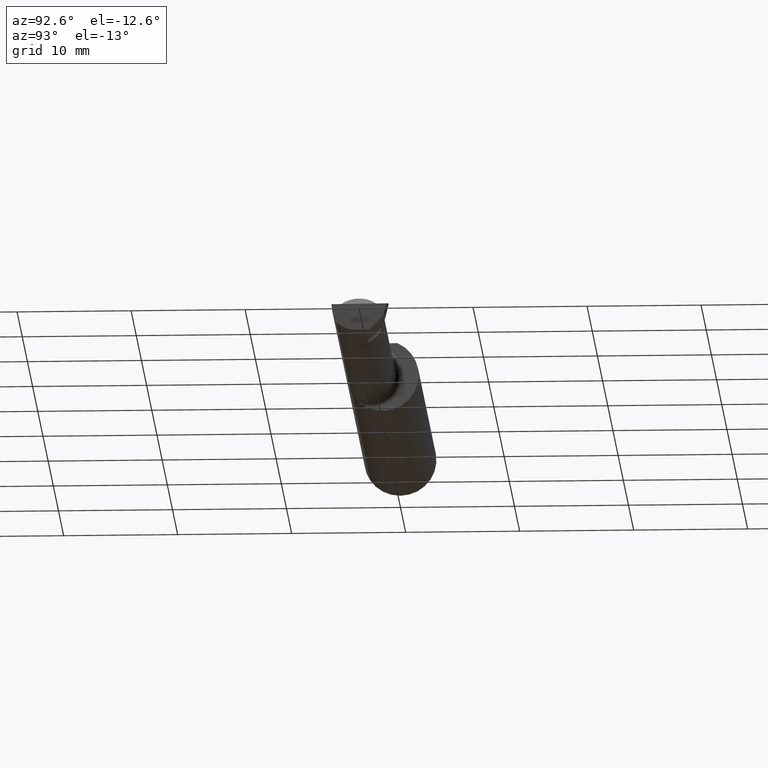
[diagram: clean part render]
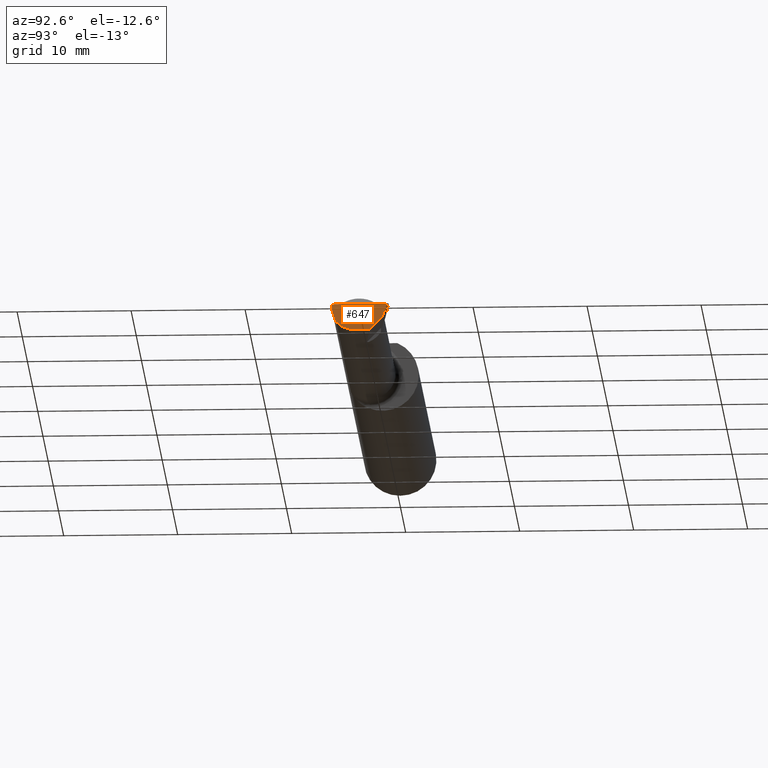
[diagram: same view with one face highlighted and labeled with its STEP entity id]
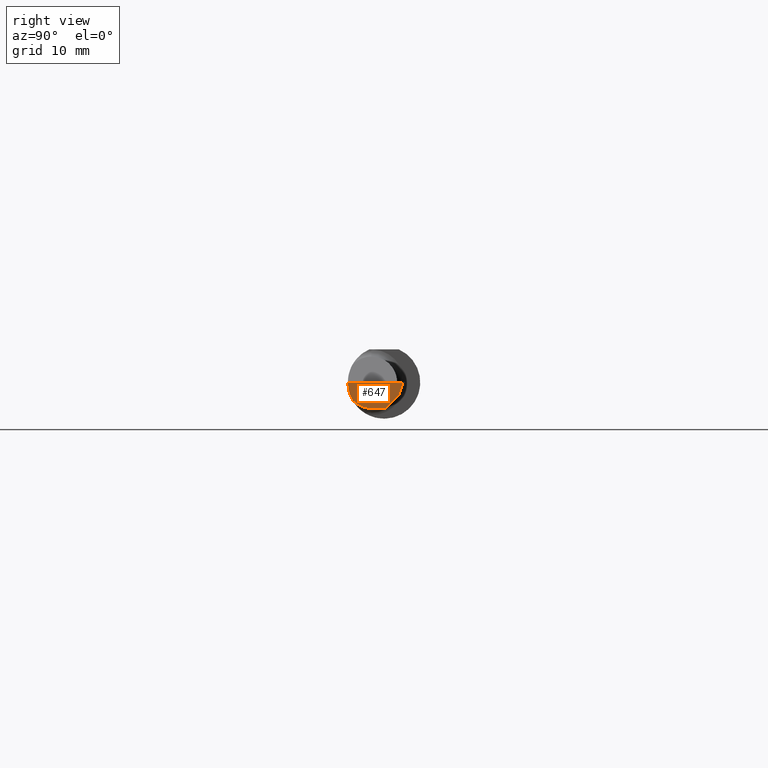
[diagram: same view with one face highlighted and labeled with its STEP entity id]
A machine part, auxiliary view. The second image highlights one B-rep face of the part: STEP entity #647.
A second angle (right view) of the same face is appended — the face is thin or edge-on in the first view.
In plain terms, the highlighted planar face has unit normal (-0.9922, 0.026, 0.1219).
Its self-contained STEP definition (entity closure, byte-faithful):
#14 = VECTOR ( 'NONE', #32, 39.37007874015748854 ) ;
#30 = EDGE_CURVE ( 'NONE', #684, #721, #809, .T. ) ;
#32 = DIRECTION ( 'NONE',  ( 0.1240019227989398731, 0.3022330132596650620, 0.9451342385281302771 ) ) ;
#49 = ORIENTED_EDGE ( 'NONE', *, *, #680, .F. ) ;
#65 = EDGE_CURVE ( 'NONE', #795, #704, #414, .T. ) ;
#90 = CARTESIAN_POINT ( 'NONE',  ( 2.482374292270798755, 0.02326865436117235911, -0.1328662684713349529 ) ) ;
#98 = CARTESIAN_POINT ( 'NONE',  ( 2.491543817870046862, -0.2497785670779703315, -6.474963748791634766E-17 ) ) ;
#112 = EDGE_CURVE ( 'NONE', #795, #286, #533, .T. ) ;
#145 = DIRECTION ( 'NONE',  ( -0.02617694830787469992, -0.9996573249755572599, -8.492548844487195967E-17 ) ) ;
#158 = ORIENTED_EDGE ( 'NONE', *, *, #30, .T. ) ;
#176 = AXIS2_PLACEMENT_3D ( 'NONE', #796, #665, #418 ) ;
#208 = CARTESIAN_POINT ( 'NONE',  ( 2.499806390372782072, 0.06575634663142121417, -6.816353103369263875E-17 ) ) ;
#220 = CARTESIAN_POINT ( 'NONE',  ( 2.487716879513912627, -0.1088159090909092547, -0.06120964326573859193 ) ) ;
#224 = CARTESIAN_POINT ( 'NONE',  ( 2.485330758133041495, -0.06888227343086728016, -0.08914999999999993763 ) ) ;
#240 = CARTESIAN_POINT ( 'NONE',  ( 2.494148570224382411, 0.05196639891662067912, -0.04312352112763103568 ) ) ;
#286 = VERTEX_POINT ( 'NONE', #587 ) ;
#294 =( BOUNDED_CURVE ( )  B_SPLINE_CURVE ( 3, ( #384, #592, #398, #596 ),
 .UNSPECIFIED., .F., .T. ) 
 B_SPLINE_CURVE_WITH_KNOTS ( ( 4, 4 ),
 ( 0.8483525745957783970, 1.360746882514726197 ),
 .UNSPECIFIED. ) 
 CURVE ( )  GEOMETRIC_REPRESENTATION_ITEM ( )  RATIONAL_B_SPLINE_CURVE ( ( 1.000000000000000000, 0.9782404171696016393, 0.9782404171696016393, 1.000000000000000000 ) ) 
 REPRESENTATION_ITEM ( '' )  );
#320 = ORIENTED_EDGE ( 'NONE', *, *, #112, .F. ) ;
#341 = EDGE_CURVE ( 'NONE', #684, #519, #294, .T. ) ;
#384 = CARTESIAN_POINT ( 'NONE',  ( 2.487716879513912627, -0.1088159090909092547, -0.06120964326573859193 ) ) ;
#385 = CARTESIAN_POINT ( 'NONE',  ( 2.494815187529301426, -0.1248500000000000304, -6.610128768667490488E-17 ) ) ;
#398 = CARTESIAN_POINT ( 'NONE',  ( 2.492166948426750128, -0.1248500000000000026, -0.02156078579982234622 ) ) ;
#401 = ORIENTED_EDGE ( 'NONE', *, *, #810, .F. ) ;
#408 = VECTOR ( 'NONE', #427, 39.37007874015748143 ) ;
#414 = LINE ( 'NONE', #90, #14 ) ;
#418 = DIRECTION ( 'NONE',  ( 0.1219104985252878054, 0.000000000000000000, 0.9925410975618670362 ) ) ;
#424 = LINE ( 'NONE', #98, #408 ) ;
#427 = DIRECTION ( 'NONE',  ( 0.02617694830787468258, 0.9996573249755572599, -1.081567693920923293E-17 ) ) ;
#441 = CARTESIAN_POINT ( 'NONE',  ( 2.485982323393565174, -0.04399999999999999745, -0.08914999999999999314 ) ) ;
#479 = CARTESIAN_POINT ( 'NONE',  ( 2.491962257089442634, 0.03748279299390212815, -0.05783569115290426027 ) ) ;
#481 = CARTESIAN_POINT ( 'NONE',  ( 2.487716879513912627, -0.1088159090909092547, -0.06120964326573859193 ) ) ;
#519 = VERTEX_POINT ( 'NONE', #385 ) ;
#533 = LINE ( 'NONE', #479, #789 ) ;
#545 = FACE_OUTER_BOUND ( 'NONE', #583, .T. ) ;
#569 = ORIENTED_EDGE ( 'NONE', *, *, #65, .T. ) ;
#583 = EDGE_LOOP ( 'NONE', ( #320, #569, #401, #584, #158, #49 ) ) ;
#584 = ORIENTED_EDGE ( 'NONE', *, *, #341, .F. ) ;
#587 = CARTESIAN_POINT ( 'NONE',  ( 2.487308770579542472, 0.006654974371325369023, -0.08914999999999999314 ) ) ;
#591 = VECTOR ( 'NONE', #145, 39.37007874015748854 ) ;
#592 = CARTESIAN_POINT ( 'NONE',  ( 2.489748215127380870, -0.1193864177600011262, -0.04241784104289499785 ) ) ;
#593 = LINE ( 'NONE', #661, #591 ) ;
#596 = CARTESIAN_POINT ( 'NONE',  ( 2.494815187529301426, -0.1248500000000000304, -6.610128768667490488E-17 ) ) ;
#647 = ADVANCED_FACE ( 'NONE', ( #545 ), #783, .F. ) ;
#661 = CARTESIAN_POINT ( 'NONE',  ( 2.485991928762870451, -0.04363318574524892302, -0.08914999999999999314 ) ) ;
#665 = DIRECTION ( 'NONE',  ( -0.9922060308645472837, 0.02598182930469481594, 0.1218693434051524027 ) ) ;
#675 = CARTESIAN_POINT ( 'NONE',  ( 2.485942244485980002, -0.09173194857106686806, -0.07930013314426062609 ) ) ;
#680 = EDGE_CURVE ( 'NONE', #286, #721, #593, .T. ) ;
#684 = VERTEX_POINT ( 'NONE', #481 ) ;
#689 = DIRECTION ( 'NONE',  ( -0.1053106618241859971, -0.6976485211320168078, -0.7086580314005208603 ) ) ;
#704 = VERTEX_POINT ( 'NONE', #208 ) ;
#721 = VERTEX_POINT ( 'NONE', #441 ) ;
#783 = PLANE ( 'NONE',  #176 ) ;
#784 = CARTESIAN_POINT ( 'NONE',  ( 2.485982323393565174, -0.04399999999999999745, -0.08914999999999999314 ) ) ;
#789 = VECTOR ( 'NONE', #689, 39.37007874015748854 ) ;
#795 = VERTEX_POINT ( 'NONE', #240 ) ;
#796 = CARTESIAN_POINT ( 'NONE',  ( 2.483804733702819956, -0.08775853831933844162, -0.09754990371710559049 ) ) ;
#809 =( BOUNDED_CURVE ( )  B_SPLINE_CURVE ( 3, ( #220, #675, #224, #784 ),
 .UNSPECIFIED., .F., .F. ) 
 B_SPLINE_CURVE_WITH_KNOTS ( ( 4, 4 ),
 ( 5.679229040429019548, 6.493234751459755927 ),
 .UNSPECIFIED. ) 
 CURVE ( )  GEOMETRIC_REPRESENTATION_ITEM ( )  RATIONAL_B_SPLINE_CURVE ( ( 1.000000000000000000, 0.9455409277260479195, 0.9455409277260479195, 1.000000000000000000 ) ) 
 REPRESENTATION_ITEM ( '' )  );
#810 = EDGE_CURVE ( 'NONE', #519, #704, #424, .T. ) ;